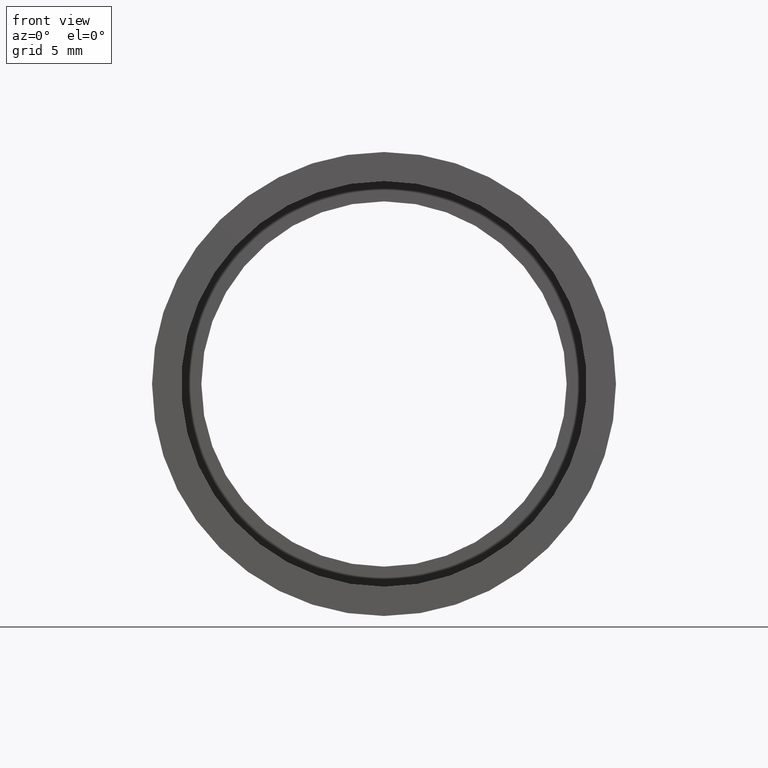
[diagram: clean part render]
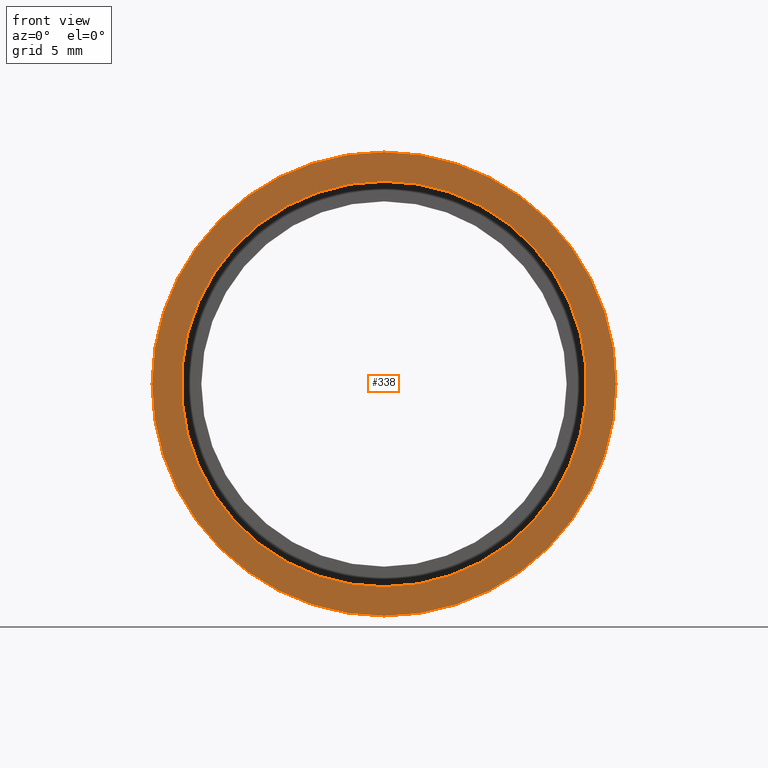
[diagram: same view with one face highlighted and labeled with its STEP entity id]
A machine part, front view. The second image highlights one B-rep face of the part: STEP entity #338.
In plain terms, the highlighted planar face has unit normal (-0, 1, 0).
Its self-contained STEP definition (entity closure, byte-faithful):
#2 = CARTESIAN_POINT ( 'NONE',  ( 11.10000000000001700, -1.580543700394483700E-014, 0.0000000000000000000 ) ) ;
#5 = EDGE_CURVE ( 'NONE', #211, #91, #455, .T. ) ;
#19 = FACE_OUTER_BOUND ( 'NONE', #274, .T. ) ;
#36 = CARTESIAN_POINT ( 'NONE',  ( 1.555301434917141000E-015, -2.775557561562891400E-014, -12.70000000000002100 ) ) ;
#38 = CIRCLE ( 'NONE', #436, 11.10000000000001700 ) ;
#52 = AXIS2_PLACEMENT_3D ( 'NONE', #545, #270, #507 ) ;
#59 = DIRECTION ( 'NONE',  ( 0.0000000000000000000, 0.0000000000000000000, 1.000000000000000000 ) ) ;
#76 = AXIS2_PLACEMENT_3D ( 'NONE', #470, #337, #564 ) ;
#78 = DIRECTION ( 'NONE',  ( -0.0000000000000000000, 1.000000000000000000, -0.0000000000000000000 ) ) ;
#91 = VERTEX_POINT ( 'NONE', #606 ) ;
#92 = VERTEX_POINT ( 'NONE', #375 ) ;
#105 = CIRCLE ( 'NONE', #52, 12.70000000000002100 ) ;
#129 = DIRECTION ( 'NONE',  ( 0.0000000000000000000, 0.0000000000000000000, 1.000000000000000000 ) ) ;
#138 = AXIS2_PLACEMENT_3D ( 'NONE', #2, #581, #484 ) ;
#211 = VERTEX_POINT ( 'NONE', #36 ) ;
#229 = FACE_BOUND ( 'NONE', #407, .T. ) ;
#256 = EDGE_CURVE ( 'NONE', #92, #569, #362, .T. ) ;
#270 = DIRECTION ( 'NONE',  ( -0.0000000000000000000, 1.000000000000000000, -0.0000000000000000000 ) ) ;
#274 = EDGE_LOOP ( 'NONE', ( #522, #327 ) ) ;
#324 = CARTESIAN_POINT ( 'NONE',  ( 0.0000000000000000000, -2.775557561562891400E-014, 0.0000000000000000000 ) ) ;
#327 = ORIENTED_EDGE ( 'NONE', *, *, #5, .F. ) ;
#337 = DIRECTION ( 'NONE',  ( -0.0000000000000000000, 1.000000000000000000, -0.0000000000000000000 ) ) ;
#338 = ADVANCED_FACE ( 'NONE', ( #19, #229 ), #433, .F. ) ;
#339 = ORIENTED_EDGE ( 'NONE', *, *, #502, .T. ) ;
#362 = CIRCLE ( 'NONE', #76, 11.10000000000001700 ) ;
#375 = CARTESIAN_POINT ( 'NONE',  ( 1.359357947053564100E-015, -2.775557561562891400E-014, -11.10000000000001700 ) ) ;
#407 = EDGE_LOOP ( 'NONE', ( #339, #583 ) ) ;
#408 = AXIS2_PLACEMENT_3D ( 'NONE', #324, #78, #129 ) ;
#433 = PLANE ( 'NONE',  #138 ) ;
#436 = AXIS2_PLACEMENT_3D ( 'NONE', #447, #544, #59 ) ;
#447 = CARTESIAN_POINT ( 'NONE',  ( 0.0000000000000000000, -2.775557561562891400E-014, 0.0000000000000000000 ) ) ;
#455 = CIRCLE ( 'NONE', #408, 12.70000000000002100 ) ;
#470 = CARTESIAN_POINT ( 'NONE',  ( 0.0000000000000000000, -2.775557561562891400E-014, 0.0000000000000000000 ) ) ;
#484 = DIRECTION ( 'NONE',  ( 0.0000000000000000000, 0.0000000000000000000, 1.000000000000000000 ) ) ;
#502 = EDGE_CURVE ( 'NONE', #569, #92, #38, .T. ) ;
#507 = DIRECTION ( 'NONE',  ( 0.0000000000000000000, 0.0000000000000000000, 1.000000000000000000 ) ) ;
#522 = ORIENTED_EDGE ( 'NONE', *, *, #534, .F. ) ;
#533 = CARTESIAN_POINT ( 'NONE',  ( 0.0000000000000000000, -2.775557561562891400E-014, 11.10000000000001700 ) ) ;
#534 = EDGE_CURVE ( 'NONE', #91, #211, #105, .T. ) ;
#544 = DIRECTION ( 'NONE',  ( -0.0000000000000000000, 1.000000000000000000, -0.0000000000000000000 ) ) ;
#545 = CARTESIAN_POINT ( 'NONE',  ( 0.0000000000000000000, -2.775557561562891400E-014, 0.0000000000000000000 ) ) ;
#564 = DIRECTION ( 'NONE',  ( 0.0000000000000000000, 0.0000000000000000000, 1.000000000000000000 ) ) ;
#569 = VERTEX_POINT ( 'NONE', #533 ) ;
#581 = DIRECTION ( 'NONE',  ( -0.0000000000000000000, 1.000000000000000000, 0.0000000000000000000 ) ) ;
#583 = ORIENTED_EDGE ( 'NONE', *, *, #256, .T. ) ;
#606 = CARTESIAN_POINT ( 'NONE',  ( 0.0000000000000000000, -2.775557561562891400E-014, 12.70000000000002100 ) ) ;